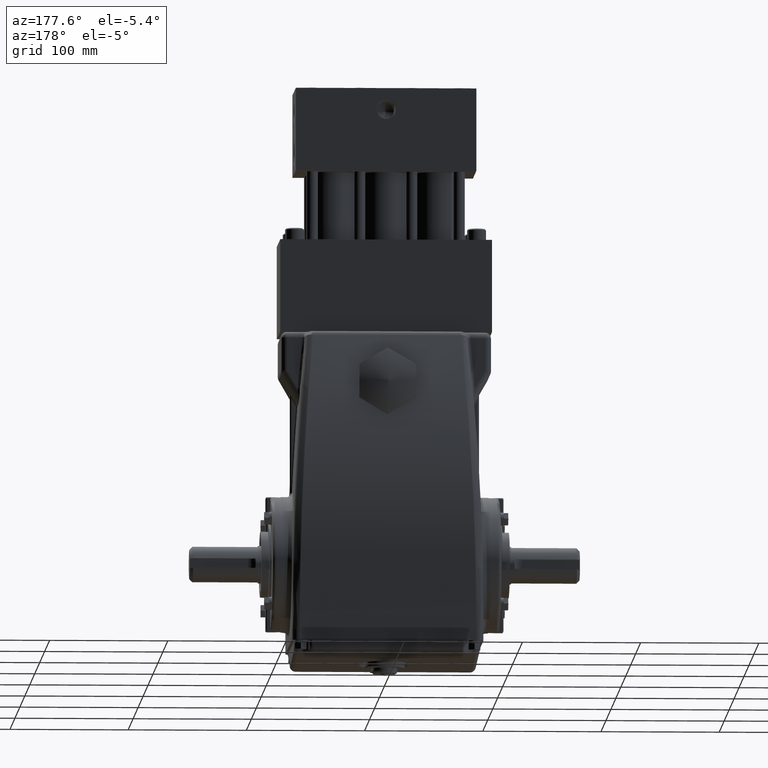
[diagram: clean part render]
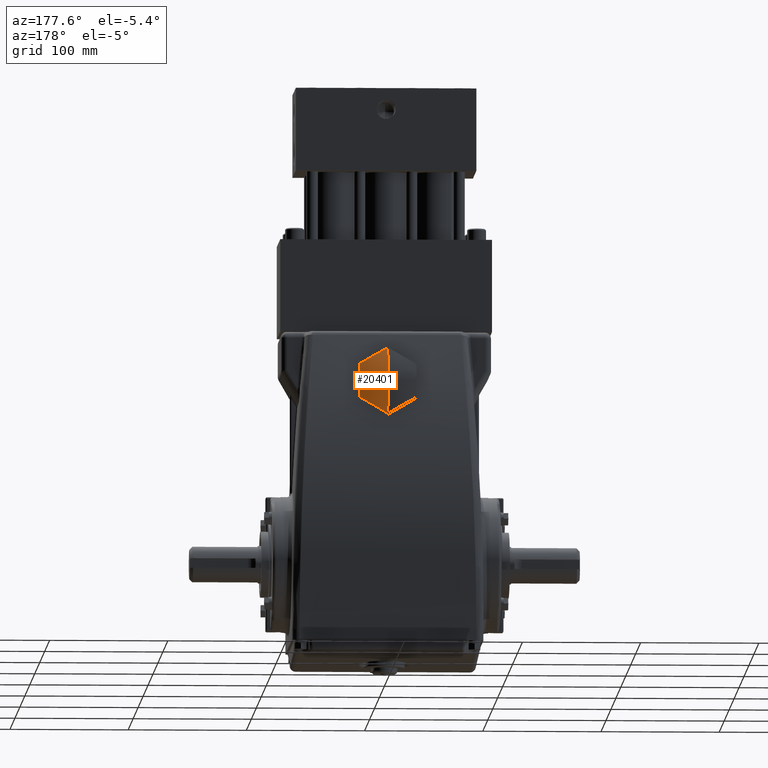
[diagram: same view with one face highlighted and labeled with its STEP entity id]
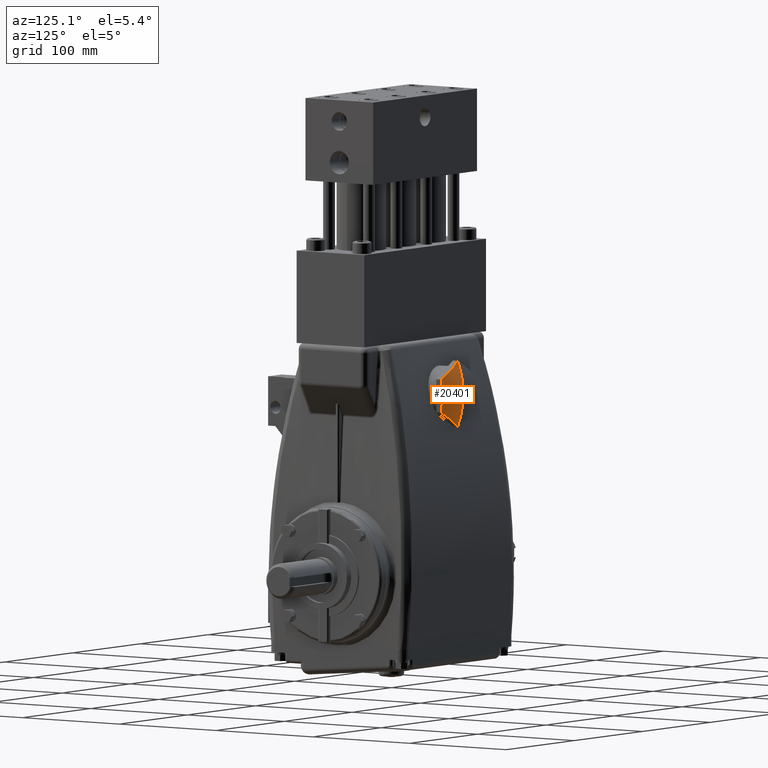
[diagram: same view with one face highlighted and labeled with its STEP entity id]
A machine part, auxiliary view. The second image highlights one B-rep face of the part: STEP entity #20401.
A second angle (auxiliary view) of the same face is appended — the face is thin or edge-on in the first view.
In plain terms, the highlighted toroidal blend (fillet) surface has major radius 7.0931 mm and minor (blend) radius 96.1149 mm.
Its self-contained STEP definition (entity closure, byte-faithful):
#19116 = CARTESIAN_POINT ( 'NONE',  ( 0.9526279441628866500, 2.700000000000000200, 6.472000000000003100 ) ) ;
#19146 = CARTESIAN_POINT ( 'NONE',  ( 0.9526279441628866500, 2.754134132964757500, 6.108860919977453300 ) ) ;
#19151 = CARTESIAN_POINT ( 'NONE',  ( 0.9526279441628867600, 2.735266251147523900, 6.291803239367915500 ) ) ;
#19549 = EDGE_CURVE ( 'NONE', #20444, #19874, #19685, .T. ) ;
#19559 = ORIENTED_EDGE ( 'NONE', *, *, #19549, .F. ) ;
#19603 = CARTESIAN_POINT ( 'NONE',  ( 0.3165637624864877700, 2.754117906695559900, 5.004768173487249800 ) ) ;
#19604 = CARTESIAN_POINT ( 'NONE',  ( 0.1580947994873250800, 2.735727223673521300, 4.913276075041483000 ) ) ;
#19606 = CARTESIAN_POINT ( 'NONE',  ( 0.0000000000000000000, 2.700000000000000200, 4.822000000000001000 ) ) ;
#19612 = CARTESIAN_POINT ( 'NONE',  ( 0.9526279441628869900, 2.700000000000000200, 5.371999999999998100 ) ) ;
#19613 = CARTESIAN_POINT ( 'NONE',  ( 0.8735497499658707600, 2.717870570954493900, 5.326344183293322500 ) ) ;
#19614 = CARTESIAN_POINT ( 'NONE',  ( 0.7936488531558370000, 2.731531941992294300, 5.280213379011554400 ) ) ;
#19615 = CARTESIAN_POINT ( 'NONE',  ( 0.6343912516448314600, 2.749682137990424400, 5.188265959908682700 ) ) ;
#19616 = CARTESIAN_POINT ( 'NONE',  ( 0.5548603832182410500, 2.754219626769043300, 5.142348791613705400 ) ) ;
#19685 = B_SPLINE_CURVE_WITH_KNOTS ( 'NONE', 3,
 ( #19606, #19604, #19603, #19616, #19615, #19614, #19613, #19612 ),
 .UNSPECIFIED., .F., .F.,
 ( 4, 2, 2, 4 ),
 ( 2.319944535592138100E-007, 0.01397421287492804300, 0.02096120331516528400, 0.02794819375540252500 ),
 .UNSPECIFIED. ) ;
#19849 = VERTEX_POINT ( 'NONE', #21087 ) ;
#19851 = ORIENTED_EDGE ( 'NONE', *, *, #19853, .F. ) ;
#19853 = EDGE_CURVE ( 'NONE', #19874, #19849, #21088, .T. ) ;
#19870 = EDGE_CURVE ( 'NONE', #19849, #20440, #21616, .T. ) ;
#19874 = VERTEX_POINT ( 'NONE', #21613 ) ;
#20401 = ADVANCED_FACE ( 'NONE', ( #21943 ), #21969, .T. ) ;
#20410 = ORIENTED_EDGE ( 'NONE', *, *, #20411, .T. ) ;
#20411 = EDGE_CURVE ( 'NONE', #20443, #20440, #22035, .T. ) ;
#20412 = EDGE_LOOP ( 'NONE', ( #20442, #20410, #20441, #19851, #19559 ) ) ;
#20413 = EDGE_CURVE ( 'NONE', #20443, #20444, #22047, .T. ) ;
#20440 = VERTEX_POINT ( 'NONE', #28986 ) ;
#20441 = ORIENTED_EDGE ( 'NONE', *, *, #19870, .F. ) ;
#20442 = ORIENTED_EDGE ( 'NONE', *, *, #20413, .F. ) ;
#20443 = VERTEX_POINT ( 'NONE', #28970 ) ;
#20444 = VERTEX_POINT ( 'NONE', #28969 ) ;
#21087 = CARTESIAN_POINT ( 'NONE',  ( 0.9526279441628866500, 2.700000000000000200, 6.472000000000003100 ) ) ;
#21088 = B_SPLINE_CURVE_WITH_KNOTS ( 'NONE', 3,
 ( #21091, #21090, #21089, #19146, #19151, #19116 ),
 .UNSPECIFIED., .F., .F.,
 ( 4, 2, 4 ),
 ( 0.5370431554979334700, 0.5510293990007293400, 0.5650156425035251000 ),
 .UNSPECIFIED. ) ;
#21089 = CARTESIAN_POINT ( 'NONE',  ( 0.9526279441628869900, 2.754237472003276700, 5.736675530745864100 ) ) ;
#21090 = CARTESIAN_POINT ( 'NONE',  ( 0.9526279441628865400, 2.735447707948345000, 5.553123933967459200 ) ) ;
#21091 = CARTESIAN_POINT ( 'NONE',  ( 0.9526279441628869900, 2.700000000000000200, 5.371999999999998100 ) ) ;
#21542 = CARTESIAN_POINT ( 'NONE',  ( -9.557827670855005500E-016, 2.700000000000000200, 7.022000000000006500 ) ) ;
#21543 = CARTESIAN_POINT ( 'NONE',  ( 0.07907819419701536700, 2.717870570954495200, 6.976344183293330800 ) ) ;
#21545 = CARTESIAN_POINT ( 'NONE',  ( 0.1589790910070489300, 2.731531941992296500, 6.930213379011562800 ) ) ;
#21598 = CARTESIAN_POINT ( 'NONE',  ( 0.9526279441628866500, 2.700000000000000200, 6.472000000000003100 ) ) ;
#21613 = CARTESIAN_POINT ( 'NONE',  ( 0.9526279441628869900, 2.700000000000000200, 5.371999999999998100 ) ) ;
#21616 = B_SPLINE_CURVE_WITH_KNOTS ( 'NONE', 3,
 ( #21598, #21693, #21692, #21689, #21687, #21545, #21543, #21542 ),
 .UNSPECIFIED., .F., .F.,
 ( 4, 2, 2, 4 ),
 ( 2.319944535220329500E-007, 0.01397421287492802900, 0.02096120331516530100, 0.02794819375540257300 ),
 .UNSPECIFIED. ) ;
#21687 = CARTESIAN_POINT ( 'NONE',  ( 0.3182366925180549800, 2.749682137990425700, 6.838265959908690100 ) ) ;
#21689 = CARTESIAN_POINT ( 'NONE',  ( 0.3977675609446463300, 2.754219626769043300, 6.792348791613713700 ) ) ;
#21692 = CARTESIAN_POINT ( 'NONE',  ( 0.6360641816764001100, 2.754117906695561700, 6.654768173487256400 ) ) ;
#21693 = CARTESIAN_POINT ( 'NONE',  ( 0.7945331446755630200, 2.735727223673521300, 6.563276075041488700 ) ) ;
#21943 = FACE_OUTER_BOUND ( 'NONE', #20412, .T. ) ;
#21966 = DIRECTION ( 'NONE',  ( 0.0000000000000000000, 0.0000000000000000000, -1.000000000000000000 ) ) ;
#21967 = AXIS2_PLACEMENT_3D ( 'NONE', #21968, #22030, #21966 ) ;
#21968 = CARTESIAN_POINT ( 'NONE',  ( 0.0000000000000000000, -0.8237339353986231600, 5.922000000000002400 ) ) ;
#21969 = TOROIDAL_SURFACE ( 'NONE', #21967, -0.2792577125905941200, 3.784052415760187100 ) ;
#22030 = DIRECTION ( 'NONE',  ( -0.0000000000000000000, -1.000000000000000000, -0.0000000000000000000 ) ) ;
#22033 = CARTESIAN_POINT ( 'NONE',  ( -3.419807691923448300E-017, -0.8237339353986231600, 5.642742287409407500 ) ) ;
#22034 = AXIS2_PLACEMENT_3D ( 'NONE', #22033, #22040, #22039 ) ;
#22035 = CIRCLE ( 'NONE', #22034, 3.784052415760187100 ) ;
#22036 = CARTESIAN_POINT ( 'NONE',  ( 0.0000000000000000000, -0.8237339353986231600, 6.201257712590596300 ) ) ;
#22039 = DIRECTION ( 'NONE',  ( -1.224606353822377300E-016, 0.0000000000000000000, -1.000000000000000000 ) ) ;
#22040 = DIRECTION ( 'NONE',  ( 1.000000000000000000, 0.0000000000000000000, -1.224606353822377300E-016 ) ) ;
#22043 = DIRECTION ( 'NONE',  ( 0.0000000000000000000, 0.0000000000000000000, 1.000000000000000000 ) ) ;
#22044 = DIRECTION ( 'NONE',  ( -1.000000000000000000, 0.0000000000000000000, 0.0000000000000000000 ) ) ;
#22045 = AXIS2_PLACEMENT_3D ( 'NONE', #22036, #22044, #22043 ) ;
#22047 = CIRCLE ( 'NONE', #22045, 3.784052415760188000 ) ;
#28969 = CARTESIAN_POINT ( 'NONE',  ( 0.0000000000000000000, 2.700000000000000200, 4.822000000000001000 ) ) ;
#28970 = CARTESIAN_POINT ( 'NONE',  ( 0.0000000000000000000, 2.949999999999999700, 5.922000000000000600 ) ) ;
#28986 = CARTESIAN_POINT ( 'NONE',  ( -9.557827670855005500E-016, 2.700000000000000200, 7.022000000000006500 ) ) ;